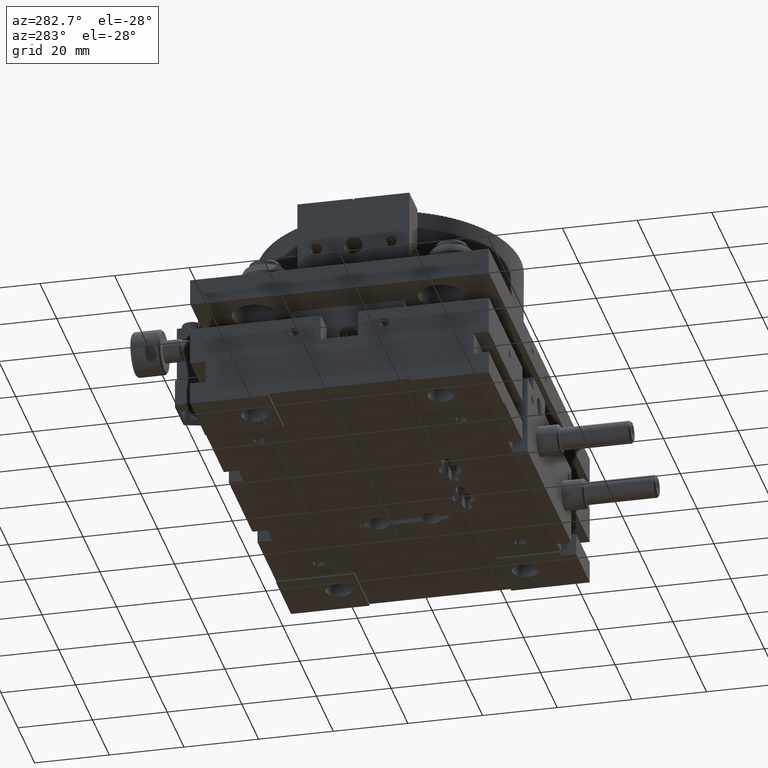
[diagram: clean part render]
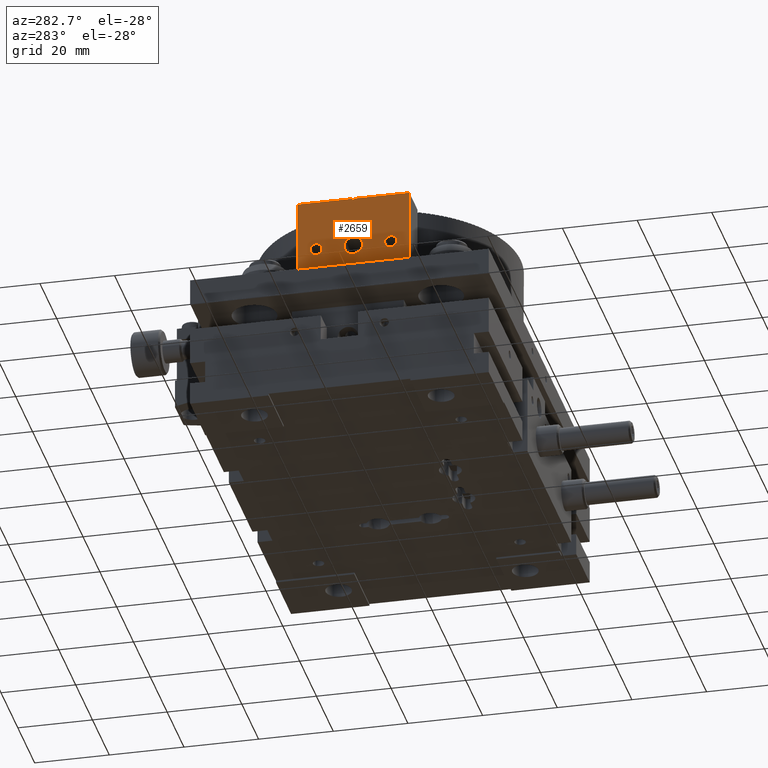
[diagram: same view with one face highlighted and labeled with its STEP entity id]
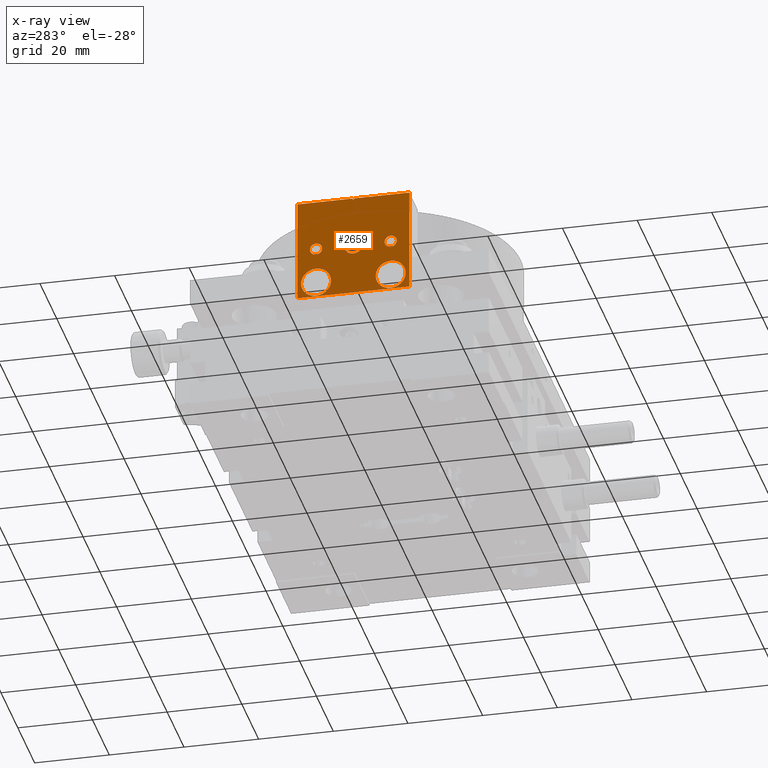
[diagram: x-ray of the same camera — body ghosted, the highlighted face saturated]
A machine part, auxiliary view. The second image highlights one B-rep face of the part: STEP entity #2659.
The next image is the same camera in x-ray: the body ghosted, the highlighted face saturated — about 0% of this face is hidden behind the body in this view.
In plain terms, the highlighted face is a freeform B-spline surface patch.
Its self-contained STEP definition (entity closure, byte-faithful):
#2659=ADVANCED_FACE('',(#5856,#3560,#3561,#3562,#3563,#3564),#103424,.T.);
#3560=FACE_BOUND('',#8921,.T.);
#3561=FACE_BOUND('',#8922,.T.);
#3562=FACE_BOUND('',#8923,.T.);
#3563=FACE_BOUND('',#8924,.T.);
#3564=FACE_BOUND('',#8925,.T.);
#5856=FACE_OUTER_BOUND('',#8920,.T.);
#8920=EDGE_LOOP('',(#21815,#21816,#21817,#21818,#21819,#21820,#21821,#21822));
#8921=EDGE_LOOP('',(#21823,#21824,#21825));
#8922=EDGE_LOOP('',(#21826,#21827));
#8923=EDGE_LOOP('',(#21828,#21829));
#8924=EDGE_LOOP('',(#21830,#21831));
#8925=EDGE_LOOP('',(#21832,#21833));
#21815=ORIENTED_EDGE('',*,*,#90311,.T.);
#21816=ORIENTED_EDGE('',*,*,#90312,.T.);
#21817=ORIENTED_EDGE('',*,*,#90227,.F.);
#21818=ORIENTED_EDGE('',*,*,#90313,.T.);
#21819=ORIENTED_EDGE('',*,*,#90314,.T.);
#21820=ORIENTED_EDGE('',*,*,#90309,.F.);
#21821=ORIENTED_EDGE('',*,*,#90307,.F.);
#21822=ORIENTED_EDGE('',*,*,#90315,.T.);
#21823=ORIENTED_EDGE('',*,*,#90285,.F.);
#21824=ORIENTED_EDGE('',*,*,#90284,.F.);
#21825=ORIENTED_EDGE('',*,*,#90290,.F.);
#21826=ORIENTED_EDGE('',*,*,#90277,.F.);
#21827=ORIENTED_EDGE('',*,*,#90282,.F.);
#21828=ORIENTED_EDGE('',*,*,#90270,.F.);
#21829=ORIENTED_EDGE('',*,*,#90275,.F.);
#21830=ORIENTED_EDGE('',*,*,#90264,.F.);
#21831=ORIENTED_EDGE('',*,*,#90268,.F.);
#21832=ORIENTED_EDGE('',*,*,#90256,.F.);
#21833=ORIENTED_EDGE('',*,*,#90260,.F.);
#41017=B_SPLINE_CURVE_WITH_KNOTS('',1,(#172285,#172286),.UNSPECIFIED.,.F.,
 .F.,(2,2),(-30.0000000000001,0.),.UNSPECIFIED.);
#41018=B_SPLINE_CURVE_WITH_KNOTS('',1,(#172287,#172288),.UNSPECIFIED.,.F.,
 .F.,(2,2),(-30.0000000000001,0.),.UNSPECIFIED.);
#41102=B_SPLINE_CURVE_WITH_KNOTS('',1,(#172723,#172724),.UNSPECIFIED.,.F.,
 .F.,(2,2),(-12.5663706143592,0.),.UNSPECIFIED.);
#41109=B_SPLINE_CURVE_WITH_KNOTS('',1,(#172752,#172753),.UNSPECIFIED.,.F.,
 .F.,(2,2),(-12.5663706143592,0.),.UNSPECIFIED.);
#41122=B_SPLINE_CURVE_WITH_KNOTS('',1,(#172804,#172805),.UNSPECIFIED.,.F.,
 .F.,(2,2),(-12.5663706143592,0.),.UNSPECIFIED.);
#41129=B_SPLINE_CURVE_WITH_KNOTS('',1,(#172833,#172834),.UNSPECIFIED.,.F.,
 .F.,(2,2),(-12.5663706143592,0.),.UNSPECIFIED.);
#41132=B_SPLINE_CURVE_WITH_KNOTS('',1,(#172865,#172866),.UNSPECIFIED.,.F.,
 .F.,(2,2),(-5.09252169146906,0.),.UNSPECIFIED.);
#41143=B_SPLINE_CURVE_WITH_KNOTS('',1,(#172922,#172923),.UNSPECIFIED.,.F.,
 .F.,(2,2),(-5.09252169146906,0.),.UNSPECIFIED.);
#41146=B_SPLINE_CURVE_WITH_KNOTS('',1,(#172933,#172934),.UNSPECIFIED.,.F.,
 .F.,(2,2),(-5.09252169146906,0.),.UNSPECIFIED.);
#41157=B_SPLINE_CURVE_WITH_KNOTS('',1,(#172986,#172987),.UNSPECIFIED.,.F.,
 .F.,(2,2),(-5.09252169146906,0.),.UNSPECIFIED.);
#41160=B_SPLINE_CURVE_WITH_KNOTS('',1,(#172995,#172996),.UNSPECIFIED.,.F.,
 .F.,(2,2),(-3.86180276942525,0.),.UNSPECIFIED.);
#41161=B_SPLINE_CURVE_WITH_KNOTS('',1,(#173002,#173003),.UNSPECIFIED.,.F.,
 .F.,(2,2),(-7.72360553885051,0.),.UNSPECIFIED.);
#41172=B_SPLINE_CURVE_WITH_KNOTS('',1,(#173051,#173052),.UNSPECIFIED.,.F.,
 .F.,(2,2),(-7.72360553885051,-3.86180276942525),.UNSPECIFIED.);
#41220=B_SPLINE_CURVE_WITH_KNOTS('',1,(#173216,#173217),.UNSPECIFIED.,.F.,
 .F.,(2,2),(0.,0.399999999999999),.UNSPECIFIED.);
#41221=B_SPLINE_CURVE_WITH_KNOTS('',1,(#173218,#173219),.UNSPECIFIED.,.F.,
 .F.,(2,2),(0.,0.399999999999999),.UNSPECIFIED.);
#41226=B_SPLINE_CURVE_WITH_KNOTS('',1,(#173231,#173232),.UNSPECIFIED.,.F.,
 .F.,(2,2),(0.,0.299999999999997),.UNSPECIFIED.);
#41227=B_SPLINE_CURVE_WITH_KNOTS('',1,(#173233,#173234),.UNSPECIFIED.,.F.,
 .F.,(2,2),(0.,0.299999999999997),.UNSPECIFIED.);
#41230=B_SPLINE_CURVE_WITH_KNOTS('',1,(#173239,#173240),.UNSPECIFIED.,.F.,
 .F.,(2,2),(0.,14.8000000000001),.UNSPECIFIED.);
#41231=B_SPLINE_CURVE_WITH_KNOTS('',1,(#173241,#173242),.UNSPECIFIED.,.F.,
 .F.,(2,2),(0.,14.8000000000001),.UNSPECIFIED.);
#41232=B_SPLINE_CURVE_WITH_KNOTS('',1,(#173243,#173244),.UNSPECIFIED.,.F.,
 .F.,(2,2),(-27.8,0.),.UNSPECIFIED.);
#41233=B_SPLINE_CURVE_WITH_KNOTS('',1,(#173245,#173246),.UNSPECIFIED.,.F.,
 .F.,(2,2),(-27.8,0.),.UNSPECIFIED.);
#41234=B_SPLINE_CURVE_WITH_KNOTS('',1,(#173247,#173248),.UNSPECIFIED.,.F.,
 .F.,(2,2),(-30.0000000000001,0.),.UNSPECIFIED.);
#41235=B_SPLINE_CURVE_WITH_KNOTS('',1,(#173249,#173250),.UNSPECIFIED.,.F.,
 .F.,(2,2),(0.,27.8),.UNSPECIFIED.);
#41236=B_SPLINE_CURVE_WITH_KNOTS('',1,(#173251,#173252),.UNSPECIFIED.,.F.,
 .F.,(2,2),(0.,27.8),.UNSPECIFIED.);
#41237=B_SPLINE_CURVE_WITH_KNOTS('',1,(#173253,#173254),.UNSPECIFIED.,.F.,
 .F.,(2,2),(0.,14.8),.UNSPECIFIED.);
#41238=B_SPLINE_CURVE_WITH_KNOTS('',1,(#173255,#173256),.UNSPECIFIED.,.F.,
 .F.,(2,2),(0.,14.8),.UNSPECIFIED.);
#41239=B_SPLINE_CURVE_WITH_KNOTS('',1,(#173257,#173258),.UNSPECIFIED.,.F.,
 .F.,(2,2),(0.,0.299999999999997),.UNSPECIFIED.);
#41240=B_SPLINE_CURVE_WITH_KNOTS('',1,(#173259,#173260),.UNSPECIFIED.,.F.,
 .F.,(2,2),(0.,0.399999999999999),.UNSPECIFIED.);
#41241=B_SPLINE_CURVE_WITH_KNOTS('',1,(#173261,#173262),.UNSPECIFIED.,.F.,
 .F.,(2,2),(0.,0.299999999999997),.UNSPECIFIED.);
#41242=B_SPLINE_CURVE_WITH_KNOTS('',1,(#173263,#173264),.UNSPECIFIED.,.F.,
 .F.,(2,2),(0.,0.299999999999997),.UNSPECIFIED.);
#41245=B_SPLINE_CURVE_WITH_KNOTS('',1,(#173320,#173321),.UNSPECIFIED.,.F.,
 .F.,(2,2),(0.,27.8),.UNSPECIFIED.);
#41252=B_SPLINE_CURVE_WITH_KNOTS('',1,(#173334,#173335),.UNSPECIFIED.,.F.,
 .F.,(2,2),(-27.8,0.),.UNSPECIFIED.);
#41253=B_SPLINE_CURVE_WITH_KNOTS('',1,(#173336,#173337),.UNSPECIFIED.,.F.,
 .F.,(2,2),(0.,0.299999999999997),.UNSPECIFIED.);
#41259=B_SPLINE_CURVE_WITH_KNOTS('',1,(#173356,#173357),.UNSPECIFIED.,.F.,
 .F.,(2,2),(0.,14.8),.UNSPECIFIED.);
#41262=B_SPLINE_CURVE_WITH_KNOTS('',1,(#173373,#173374),.UNSPECIFIED.,.F.,
 .F.,(2,2),(0.,14.8000000000001),.UNSPECIFIED.);
#56999=PCURVE('',#103404,#72592);
#57114=PCURVE('',#101254,#72707);
#57120=PCURVE('',#101255,#72713);
#57135=PCURVE('',#101258,#72728);
#57141=PCURVE('',#101259,#72734);
#57148=PCURVE('',#101260,#72741);
#57155=PCURVE('',#101261,#72748);
#57157=PCURVE('',#101262,#72750);
#57164=PCURVE('',#101263,#72757);
#57166=PCURVE('',#101264,#72759);
#57167=PCURVE('',#101264,#72760);
#57174=PCURVE('',#101265,#72767);
#57213=PCURVE('',#103422,#72806);
#57218=PCURVE('',#103423,#72811);
#57220=PCURVE('',#103424,#72813);
#57221=PCURVE('',#103424,#72814);
#57222=PCURVE('',#103424,#72815);
#57223=PCURVE('',#103424,#72816);
#57224=PCURVE('',#103424,#72817);
#57225=PCURVE('',#103424,#72818);
#57226=PCURVE('',#103424,#72819);
#57227=PCURVE('',#103424,#72820);
#57228=PCURVE('',#103424,#72821);
#57229=PCURVE('',#103424,#72822);
#57230=PCURVE('',#103424,#72823);
#57231=PCURVE('',#103424,#72824);
#57232=PCURVE('',#103424,#72825);
#57233=PCURVE('',#103424,#72826);
#57234=PCURVE('',#103424,#72827);
#57235=PCURVE('',#103424,#72828);
#57236=PCURVE('',#103424,#72829);
#57237=PCURVE('',#103424,#72830);
#57238=PCURVE('',#103424,#72831);
#57240=PCURVE('',#103425,#72833);
#57246=PCURVE('',#103426,#72839);
#57247=PCURVE('',#103427,#72840);
#57254=PCURVE('',#103428,#72847);
#57260=PCURVE('',#103429,#72853);
#72592=DEFINITIONAL_REPRESENTATION('',(#41018),#197026);
#72707=DEFINITIONAL_REPRESENTATION('',(#41102),#197026);
#72713=DEFINITIONAL_REPRESENTATION('',(#41109),#197026);
#72728=DEFINITIONAL_REPRESENTATION('',(#41122),#197026);
#72734=DEFINITIONAL_REPRESENTATION('',(#41129),#197026);
#72741=DEFINITIONAL_REPRESENTATION('',(#41132),#197026);
#72748=DEFINITIONAL_REPRESENTATION('',(#41143),#197026);
#72750=DEFINITIONAL_REPRESENTATION('',(#41146),#197026);
#72757=DEFINITIONAL_REPRESENTATION('',(#41157),#197026);
#72759=DEFINITIONAL_REPRESENTATION('',(#41160),#197026);
#72760=DEFINITIONAL_REPRESENTATION('',(#41161),#197026);
#72767=DEFINITIONAL_REPRESENTATION('',(#41172),#197026);
#72806=DEFINITIONAL_REPRESENTATION('',(#41221),#197026);
#72811=DEFINITIONAL_REPRESENTATION('',(#41227),#197026);
#72813=DEFINITIONAL_REPRESENTATION('',(#41231),#197026);
#72814=DEFINITIONAL_REPRESENTATION('',(#41233),#197026);
#72815=DEFINITIONAL_REPRESENTATION('',(#41234),#197026);
#72816=DEFINITIONAL_REPRESENTATION('',(#41236),#197026);
#72817=DEFINITIONAL_REPRESENTATION('',(#41238),#197026);
#72818=DEFINITIONAL_REPRESENTATION('',(#41239),#197026);
#72819=DEFINITIONAL_REPRESENTATION('',(#41240),#197026);
#72820=DEFINITIONAL_REPRESENTATION('',(#41242),#197026);
#72821=DEFINITIONAL_REPRESENTATION('',(#94347),#197026);
#72822=DEFINITIONAL_REPRESENTATION('',(#94348),#197026);
#72823=DEFINITIONAL_REPRESENTATION('',(#94349),#197026);
#72824=DEFINITIONAL_REPRESENTATION('',(#94350),#197026);
#72825=DEFINITIONAL_REPRESENTATION('',(#94351),#197026);
#72826=DEFINITIONAL_REPRESENTATION('',(#94352),#197026);
#72827=DEFINITIONAL_REPRESENTATION('',(#94353),#197026);
#72828=DEFINITIONAL_REPRESENTATION('',(#94354),#197026);
#72829=DEFINITIONAL_REPRESENTATION('',(#94355),#197026);
#72830=DEFINITIONAL_REPRESENTATION('',(#94356),#197026);
#72831=DEFINITIONAL_REPRESENTATION('',(#94357),#197026);
#72833=DEFINITIONAL_REPRESENTATION('',(#41245),#197026);
#72839=DEFINITIONAL_REPRESENTATION('',(#41252),#197026);
#72840=DEFINITIONAL_REPRESENTATION('',(#41253),#197026);
#72847=DEFINITIONAL_REPRESENTATION('',(#41259),#197026);
#72853=DEFINITIONAL_REPRESENTATION('',(#41262),#197026);
#82369=SURFACE_CURVE('',#41017,(#56999,#57222),.PCURVE_S1.);
#82398=SURFACE_CURVE('',#94314,(#57114,#57237),.PCURVE_S1.);
#82402=SURFACE_CURVE('',#94317,(#57120,#57238),.PCURVE_S1.);
#82406=SURFACE_CURVE('',#94323,(#57135,#57235),.PCURVE_S1.);
#82410=SURFACE_CURVE('',#94326,(#57141,#57236),.PCURVE_S1.);
#82412=SURFACE_CURVE('',#94332,(#57148,#57233),.PCURVE_S1.);
#82417=SURFACE_CURVE('',#94333,(#57155,#57234),.PCURVE_S1.);
#82419=SURFACE_CURVE('',#94334,(#57157,#57231),.PCURVE_S1.);
#82424=SURFACE_CURVE('',#94335,(#57164,#57232),.PCURVE_S1.);
#82426=SURFACE_CURVE('',#94336,(#57166,#57229),.PCURVE_S1.);
#82427=SURFACE_CURVE('',#94337,(#57167,#57228),.PCURVE_S1.);
#82432=SURFACE_CURVE('',#94338,(#57174,#57230),.PCURVE_S1.);
#82449=SURFACE_CURVE('',#41220,(#57213,#57226),.PCURVE_S1.);
#82451=SURFACE_CURVE('',#41226,(#57218,#57225),.PCURVE_S1.);
#82453=SURFACE_CURVE('',#41230,(#57220,#57260),.PCURVE_S1.);
#82454=SURFACE_CURVE('',#41232,(#57221,#57246),.PCURVE_S1.);
#82455=SURFACE_CURVE('',#41235,(#57223,#57240),.PCURVE_S1.);
#82456=SURFACE_CURVE('',#41237,(#57224,#57254),.PCURVE_S1.);
#82457=SURFACE_CURVE('',#41241,(#57227,#57247),.PCURVE_S1.);
#90227=EDGE_CURVE('',#99723,#99724,#82369,.T.);
#90256=EDGE_CURVE('',#99730,#99731,#82398,.T.);
#90260=EDGE_CURVE('',#99731,#99730,#82402,.T.);
#90264=EDGE_CURVE('',#99734,#99735,#82406,.T.);
#90268=EDGE_CURVE('',#99735,#99734,#82410,.T.);
#90270=EDGE_CURVE('',#99738,#99739,#82412,.T.);
#90275=EDGE_CURVE('',#99739,#99738,#82417,.T.);
#90277=EDGE_CURVE('',#99743,#99744,#82419,.T.);
#90282=EDGE_CURVE('',#99744,#99743,#82424,.T.);
#90284=EDGE_CURVE('',#99748,#99750,#82426,.T.);
#90285=EDGE_CURVE('',#99750,#99749,#82427,.T.);
#90290=EDGE_CURVE('',#99749,#99748,#82432,.T.);
#90307=EDGE_CURVE('',#99764,#99765,#82449,.T.);
#90309=EDGE_CURVE('',#99765,#99766,#82451,.T.);
#90311=EDGE_CURVE('',#99767,#99768,#82453,.T.);
#90312=EDGE_CURVE('',#99768,#99724,#82454,.T.);
#90313=EDGE_CURVE('',#99723,#99769,#82455,.T.);
#90314=EDGE_CURVE('',#99769,#99766,#82456,.T.);
#90315=EDGE_CURVE('',#99764,#99767,#82457,.T.);
#94314=(
BOUNDED_CURVE()
B_SPLINE_CURVE(2,(#172718,#172719,#172720,#172721,#172722),
 .UNSPECIFIED.,.F.,.F.)
B_SPLINE_CURVE_WITH_KNOTS((3,2,3),(-12.5663706143592,-6.28318530717959,
0.),.UNSPECIFIED.)
CURVE()
GEOMETRIC_REPRESENTATION_ITEM()
RATIONAL_B_SPLINE_CURVE((1.,0.707106781186548,1.,0.707106781186548,1.))
REPRESENTATION_ITEM('')
);
#94317=(
BOUNDED_CURVE()
B_SPLINE_CURVE(2,(#172747,#172748,#172749,#172750,#172751),
 .UNSPECIFIED.,.F.,.F.)
B_SPLINE_CURVE_WITH_KNOTS((3,2,3),(-12.5663706143592,-6.28318530717959,
0.),.UNSPECIFIED.)
CURVE()
GEOMETRIC_REPRESENTATION_ITEM()
RATIONAL_B_SPLINE_CURVE((1.,0.707106781186548,1.,0.707106781186548,1.))
REPRESENTATION_ITEM('')
);
#94323=(
BOUNDED_CURVE()
B_SPLINE_CURVE(2,(#172799,#172800,#172801,#172802,#172803),
 .UNSPECIFIED.,.F.,.F.)
B_SPLINE_CURVE_WITH_KNOTS((3,2,3),(-12.5663706143592,-6.28318530717959,
0.),.UNSPECIFIED.)
CURVE()
GEOMETRIC_REPRESENTATION_ITEM()
RATIONAL_B_SPLINE_CURVE((1.,0.707106781186548,1.,0.707106781186548,1.))
REPRESENTATION_ITEM('')
);
#94326=(
BOUNDED_CURVE()
B_SPLINE_CURVE(2,(#172828,#172829,#172830,#172831,#172832),
 .UNSPECIFIED.,.F.,.F.)
B_SPLINE_CURVE_WITH_KNOTS((3,2,3),(-12.5663706143592,-6.28318530717959,
0.),.UNSPECIFIED.)
CURVE()
GEOMETRIC_REPRESENTATION_ITEM()
RATIONAL_B_SPLINE_CURVE((1.,0.707106781186548,1.,0.707106781186548,1.))
REPRESENTATION_ITEM('')
);
#94332=(
BOUNDED_CURVE()
B_SPLINE_CURVE(2,(#172860,#172861,#172862,#172863,#172864),
 .UNSPECIFIED.,.F.,.F.)
B_SPLINE_CURVE_WITH_KNOTS((3,2,3),(-5.09252169146906,-2.54626084573453,
0.),.UNSPECIFIED.)
CURVE()
GEOMETRIC_REPRESENTATION_ITEM()
RATIONAL_B_SPLINE_CURVE((1.,0.707106781186554,1.,0.707106781186554,1.))
REPRESENTATION_ITEM('')
);
#94333=(
BOUNDED_CURVE()
B_SPLINE_CURVE(2,(#172917,#172918,#172919,#172920,#172921),
 .UNSPECIFIED.,.F.,.F.)
B_SPLINE_CURVE_WITH_KNOTS((3,2,3),(-5.09252169146906,-2.54626084573453,
0.),.UNSPECIFIED.)
CURVE()
GEOMETRIC_REPRESENTATION_ITEM()
RATIONAL_B_SPLINE_CURVE((1.,0.707106781186544,1.,0.707106781186544,1.))
REPRESENTATION_ITEM('')
);
#94334=(
BOUNDED_CURVE()
B_SPLINE_CURVE(2,(#172928,#172929,#172930,#172931,#172932),
 .UNSPECIFIED.,.F.,.F.)
B_SPLINE_CURVE_WITH_KNOTS((3,2,3),(-5.09252169146906,-2.54626084573453,
0.),.UNSPECIFIED.)
CURVE()
GEOMETRIC_REPRESENTATION_ITEM()
RATIONAL_B_SPLINE_CURVE((1.,0.707106781186548,1.,0.707106781186548,1.))
REPRESENTATION_ITEM('')
);
#94335=(
BOUNDED_CURVE()
B_SPLINE_CURVE(2,(#172981,#172982,#172983,#172984,#172985),
 .UNSPECIFIED.,.F.,.F.)
B_SPLINE_CURVE_WITH_KNOTS((3,2,3),(-5.09252169146906,-2.54626084573453,
0.),.UNSPECIFIED.)
CURVE()
GEOMETRIC_REPRESENTATION_ITEM()
RATIONAL_B_SPLINE_CURVE((1.,0.707106781186548,1.,0.707106781186548,1.))
REPRESENTATION_ITEM('')
);
#94336=(
BOUNDED_CURVE()
B_SPLINE_CURVE(2,(#172992,#172993,#172994),.UNSPECIFIED.,.F.,.F.)
B_SPLINE_CURVE_WITH_KNOTS((3,3),(-3.86180276942525,0.),.UNSPECIFIED.)
CURVE()
GEOMETRIC_REPRESENTATION_ITEM()
RATIONAL_B_SPLINE_CURVE((1.,0.707106781186554,1.))
REPRESENTATION_ITEM('')
);
#94337=(
BOUNDED_CURVE()
B_SPLINE_CURVE(2,(#172997,#172998,#172999,#173000,#173001),
 .UNSPECIFIED.,.F.,.F.)
B_SPLINE_CURVE_WITH_KNOTS((3,2,3),(-7.72360553885051,-3.86180276942525,
0.),.UNSPECIFIED.)
CURVE()
GEOMETRIC_REPRESENTATION_ITEM()
RATIONAL_B_SPLINE_CURVE((1.,0.707106781186542,1.,0.707106781186542,1.))
REPRESENTATION_ITEM('')
);
#94338=(
BOUNDED_CURVE()
B_SPLINE_CURVE(2,(#173048,#173049,#173050),.UNSPECIFIED.,.F.,.F.)
B_SPLINE_CURVE_WITH_KNOTS((3,3),(-7.72360553885051,-3.86180276942525),
 .UNSPECIFIED.)
CURVE()
GEOMETRIC_REPRESENTATION_ITEM()
RATIONAL_B_SPLINE_CURVE((1.,0.707106781186549,1.))
REPRESENTATION_ITEM('')
);
#94347=(
BOUNDED_CURVE()
B_SPLINE_CURVE(2,(#173265,#173266,#173267,#173268,#173269),
 .UNSPECIFIED.,.F.,.F.)
B_SPLINE_CURVE_WITH_KNOTS((3,2,3),(-7.72360553885051,-3.86180276942525,
0.),.UNSPECIFIED.)
CURVE()
GEOMETRIC_REPRESENTATION_ITEM()
RATIONAL_B_SPLINE_CURVE((1.,0.707106781186548,1.,0.707106781186548,1.))
REPRESENTATION_ITEM('')
);
#94348=(
BOUNDED_CURVE()
B_SPLINE_CURVE(2,(#173270,#173271,#173272),.UNSPECIFIED.,.F.,.F.)
B_SPLINE_CURVE_WITH_KNOTS((3,3),(-3.86180276942525,0.),.UNSPECIFIED.)
CURVE()
GEOMETRIC_REPRESENTATION_ITEM()
RATIONAL_B_SPLINE_CURVE((1.,0.707106781186551,1.))
REPRESENTATION_ITEM('')
);
#94349=(
BOUNDED_CURVE()
B_SPLINE_CURVE(2,(#173273,#173274,#173275),.UNSPECIFIED.,.F.,.F.)
B_SPLINE_CURVE_WITH_KNOTS((3,3),(-7.72360553885051,-3.86180276942525),
 .UNSPECIFIED.)
CURVE()
GEOMETRIC_REPRESENTATION_ITEM()
RATIONAL_B_SPLINE_CURVE((1.,0.707106781186544,1.))
REPRESENTATION_ITEM('')
);
#94350=(
BOUNDED_CURVE()
B_SPLINE_CURVE(2,(#173276,#173277,#173278,#173279,#173280),
 .UNSPECIFIED.,.F.,.F.)
B_SPLINE_CURVE_WITH_KNOTS((3,2,3),(-5.09252169146906,-2.54626084573453,
0.),.UNSPECIFIED.)
CURVE()
GEOMETRIC_REPRESENTATION_ITEM()
RATIONAL_B_SPLINE_CURVE((1.,0.707106781186548,1.,0.707106781186548,1.))
REPRESENTATION_ITEM('')
);
#94351=(
BOUNDED_CURVE()
B_SPLINE_CURVE(2,(#173281,#173282,#173283,#173284,#173285),
 .UNSPECIFIED.,.F.,.F.)
B_SPLINE_CURVE_WITH_KNOTS((3,2,3),(-5.09252169146906,-2.54626084573453,
0.),.UNSPECIFIED.)
CURVE()
GEOMETRIC_REPRESENTATION_ITEM()
RATIONAL_B_SPLINE_CURVE((1.,0.707106781186548,1.,0.707106781186548,1.))
REPRESENTATION_ITEM('')
);
#94352=(
BOUNDED_CURVE()
B_SPLINE_CURVE(2,(#173286,#173287,#173288,#173289,#173290),
 .UNSPECIFIED.,.F.,.F.)
B_SPLINE_CURVE_WITH_KNOTS((3,2,3),(-5.09252169146906,-2.54626084573453,
0.),.UNSPECIFIED.)
CURVE()
GEOMETRIC_REPRESENTATION_ITEM()
RATIONAL_B_SPLINE_CURVE((1.,0.707106781186548,1.,0.707106781186548,1.))
REPRESENTATION_ITEM('')
);
#94353=(
BOUNDED_CURVE()
B_SPLINE_CURVE(2,(#173291,#173292,#173293,#173294,#173295),
 .UNSPECIFIED.,.F.,.F.)
B_SPLINE_CURVE_WITH_KNOTS((3,2,3),(-5.09252169146906,-2.54626084573453,
0.),.UNSPECIFIED.)
CURVE()
GEOMETRIC_REPRESENTATION_ITEM()
RATIONAL_B_SPLINE_CURVE((1.,0.707106781186548,1.,0.707106781186548,1.))
REPRESENTATION_ITEM('')
);
#94354=(
BOUNDED_CURVE()
B_SPLINE_CURVE(2,(#173296,#173297,#173298,#173299,#173300),
 .UNSPECIFIED.,.F.,.F.)
B_SPLINE_CURVE_WITH_KNOTS((3,2,3),(-12.5663706143592,-6.28318530717959,
0.),.UNSPECIFIED.)
CURVE()
GEOMETRIC_REPRESENTATION_ITEM()
RATIONAL_B_SPLINE_CURVE((1.,0.707106781186548,1.,0.707106781186548,1.))
REPRESENTATION_ITEM('')
);
#94355=(
BOUNDED_CURVE()
B_SPLINE_CURVE(2,(#173301,#173302,#173303,#173304,#173305),
 .UNSPECIFIED.,.F.,.F.)
B_SPLINE_CURVE_WITH_KNOTS((3,2,3),(-12.5663706143592,-6.28318530717959,
0.),.UNSPECIFIED.)
CURVE()
GEOMETRIC_REPRESENTATION_ITEM()
RATIONAL_B_SPLINE_CURVE((1.,0.707106781186548,1.,0.707106781186548,1.))
REPRESENTATION_ITEM('')
);
#94356=(
BOUNDED_CURVE()
B_SPLINE_CURVE(2,(#173306,#173307,#173308,#173309,#173310),
 .UNSPECIFIED.,.F.,.F.)
B_SPLINE_CURVE_WITH_KNOTS((3,2,3),(-12.5663706143592,-6.28318530717959,
0.),.UNSPECIFIED.)
CURVE()
GEOMETRIC_REPRESENTATION_ITEM()
RATIONAL_B_SPLINE_CURVE((1.,0.707106781186548,1.,0.707106781186548,1.))
REPRESENTATION_ITEM('')
);
#94357=(
BOUNDED_CURVE()
B_SPLINE_CURVE(2,(#173311,#173312,#173313,#173314,#173315),
 .UNSPECIFIED.,.F.,.F.)
B_SPLINE_CURVE_WITH_KNOTS((3,2,3),(-12.5663706143592,-6.28318530717959,
0.),.UNSPECIFIED.)
CURVE()
GEOMETRIC_REPRESENTATION_ITEM()
RATIONAL_B_SPLINE_CURVE((1.,0.707106781186548,1.,0.707106781186548,1.))
REPRESENTATION_ITEM('')
);
#99723=VERTEX_POINT('',#165169);
#99724=VERTEX_POINT('',#165170);
#99730=VERTEX_POINT('',#165176);
#99731=VERTEX_POINT('',#165177);
#99734=VERTEX_POINT('',#165180);
#99735=VERTEX_POINT('',#165181);
#99738=VERTEX_POINT('',#165184);
#99739=VERTEX_POINT('',#165185);
#99743=VERTEX_POINT('',#165189);
#99744=VERTEX_POINT('',#165190);
#99748=VERTEX_POINT('',#165194);
#99749=VERTEX_POINT('',#165195);
#99750=VERTEX_POINT('',#165196);
#99764=VERTEX_POINT('',#165210);
#99765=VERTEX_POINT('',#165211);
#99766=VERTEX_POINT('',#165212);
#99767=VERTEX_POINT('',#165213);
#99768=VERTEX_POINT('',#165214);
#99769=VERTEX_POINT('',#165215);
#101254=(
BOUNDED_SURFACE()
B_SPLINE_SURFACE(1,2,((#163201,#163202,#163203,#163204,#163205,#163206,
#163207,#163208,#163209),(#163210,#163211,#163212,#163213,#163214,#163215,
#163216,#163217,#163218)),.UNSPECIFIED.,.F.,.F.,.F.)
B_SPLINE_SURFACE_WITH_KNOTS((2,2),(3,2,2,2,3),(0.,5.64000000000002),(0.,
1.5707963267949,3.14159265358979,4.71238898038469,6.28318530717959),
 .UNSPECIFIED.)
GEOMETRIC_REPRESENTATION_ITEM()
RATIONAL_B_SPLINE_SURFACE(((1.,0.707106781186548,1.,0.707106781186548,1.,
0.707106781186548,1.,0.707106781186548,1.),(1.,0.707106781186548,1.,0.707106781186548,
1.,0.707106781186548,1.,0.707106781186548,1.)))
REPRESENTATION_ITEM('')
SURFACE()
);
#101255=(
BOUNDED_SURFACE()
B_SPLINE_SURFACE(1,2,((#163219,#163220,#163221,#163222,#163223,#163224,
#163225,#163226,#163227),(#163228,#163229,#163230,#163231,#163232,#163233,
#163234,#163235,#163236)),.UNSPECIFIED.,.F.,.F.,.F.)
B_SPLINE_SURFACE_WITH_KNOTS((2,2),(3,2,2,2,3),(0.,5.64000000000002),(0.,
1.5707963267949,3.14159265358979,4.71238898038469,6.28318530717959),
 .UNSPECIFIED.)
GEOMETRIC_REPRESENTATION_ITEM()
RATIONAL_B_SPLINE_SURFACE(((1.,0.707106781186548,1.,0.707106781186548,1.,
0.707106781186548,1.,0.707106781186548,1.),(1.,0.707106781186548,1.,0.707106781186548,
1.,0.707106781186548,1.,0.707106781186548,1.)))
REPRESENTATION_ITEM('')
SURFACE()
);
#101258=(
BOUNDED_SURFACE()
B_SPLINE_SURFACE(1,2,((#163277,#163278,#163279,#163280,#163281,#163282,
#163283,#163284,#163285),(#163286,#163287,#163288,#163289,#163290,#163291,
#163292,#163293,#163294)),.UNSPECIFIED.,.F.,.F.,.F.)
B_SPLINE_SURFACE_WITH_KNOTS((2,2),(3,2,2,2,3),(0.,5.64000000000002),(0.,
1.5707963267949,3.14159265358979,4.71238898038469,6.28318530717959),
 .UNSPECIFIED.)
GEOMETRIC_REPRESENTATION_ITEM()
RATIONAL_B_SPLINE_SURFACE(((1.,0.707106781186548,1.,0.707106781186548,1.,
0.707106781186548,1.,0.707106781186548,1.),(1.,0.707106781186548,1.,0.707106781186548,
1.,0.707106781186548,1.,0.707106781186548,1.)))
REPRESENTATION_ITEM('')
SURFACE()
);
#101259=(
BOUNDED_SURFACE()
B_SPLINE_SURFACE(1,2,((#163295,#163296,#163297,#163298,#163299,#163300,
#163301,#163302,#163303),(#163304,#163305,#163306,#163307,#163308,#163309,
#163310,#163311,#163312)),.UNSPECIFIED.,.F.,.F.,.F.)
B_SPLINE_SURFACE_WITH_KNOTS((2,2),(3,2,2,2,3),(0.,5.64000000000002),(0.,
1.5707963267949,3.14159265358979,4.71238898038469,6.28318530717959),
 .UNSPECIFIED.)
GEOMETRIC_REPRESENTATION_ITEM()
RATIONAL_B_SPLINE_SURFACE(((1.,0.707106781186548,1.,0.707106781186548,1.,
0.707106781186548,1.,0.707106781186548,1.),(1.,0.707106781186548,1.,0.707106781186548,
1.,0.707106781186548,1.,0.707106781186548,1.)))
REPRESENTATION_ITEM('')
SURFACE()
);
#101260=(
BOUNDED_SURFACE()
B_SPLINE_SURFACE(1,2,((#163317,#163318,#163319,#163320,#163321,#163322,
#163323,#163324,#163325),(#163326,#163327,#163328,#163329,#163330,#163331,
#163332,#163333,#163334)),.UNSPECIFIED.,.F.,.F.,.F.)
B_SPLINE_SURFACE_WITH_KNOTS((2,2),(3,2,2,2,3),(0.,10.9192654573645),(0.,
1.5707963267949,3.14159265358979,4.71238898038469,6.28318530717959),
 .UNSPECIFIED.)
GEOMETRIC_REPRESENTATION_ITEM()
RATIONAL_B_SPLINE_SURFACE(((1.,0.707106781186548,1.,0.707106781186548,1.,
0.707106781186548,1.,0.707106781186548,1.),(1.,0.707106781186548,1.,0.707106781186548,
1.,0.707106781186548,1.,0.707106781186548,1.)))
REPRESENTATION_ITEM('')
SURFACE()
);
#101261=(
BOUNDED_SURFACE()
B_SPLINE_SURFACE(1,2,((#163335,#163336,#163337,#163338,#163339,#163340,
#163341,#163342,#163343),(#163344,#163345,#163346,#163347,#163348,#163349,
#163350,#163351,#163352)),.UNSPECIFIED.,.F.,.F.,.F.)
B_SPLINE_SURFACE_WITH_KNOTS((2,2),(3,2,2,2,3),(0.,10.9192654573645),(0.,
1.5707963267949,3.14159265358979,4.71238898038469,6.28318530717959),
 .UNSPECIFIED.)
GEOMETRIC_REPRESENTATION_ITEM()
RATIONAL_B_SPLINE_SURFACE(((1.,0.707106781186548,1.,0.707106781186548,1.,
0.707106781186548,1.,0.707106781186548,1.),(1.,0.707106781186548,1.,0.707106781186548,
1.,0.707106781186548,1.,0.707106781186548,1.)))
REPRESENTATION_ITEM('')
SURFACE()
);
#101262=(
BOUNDED_SURFACE()
B_SPLINE_SURFACE(1,2,((#163353,#163354,#163355,#163356,#163357,#163358,
#163359,#163360,#163361),(#163362,#163363,#163364,#163365,#163366,#163367,
#163368,#163369,#163370)),.UNSPECIFIED.,.F.,.F.,.F.)
B_SPLINE_SURFACE_WITH_KNOTS((2,2),(3,2,2,2,3),(0.,10.9192654573645),(0.,
1.5707963267949,3.14159265358979,4.71238898038469,6.28318530717959),
 .UNSPECIFIED.)
GEOMETRIC_REPRESENTATION_ITEM()
RATIONAL_B_SPLINE_SURFACE(((1.,0.707106781186548,1.,0.707106781186548,1.,
0.707106781186548,1.,0.707106781186548,1.),(1.,0.707106781186548,1.,0.707106781186548,
1.,0.707106781186548,1.,0.707106781186548,1.)))
REPRESENTATION_ITEM('')
SURFACE()
);
#101263=(
BOUNDED_SURFACE()
B_SPLINE_SURFACE(1,2,((#163371,#163372,#163373,#163374,#163375,#163376,
#163377,#163378,#163379),(#163380,#163381,#163382,#163383,#163384,#163385,
#163386,#163387,#163388)),.UNSPECIFIED.,.F.,.F.,.F.)
B_SPLINE_SURFACE_WITH_KNOTS((2,2),(3,2,2,2,3),(0.,10.9192654573645),(0.,
1.5707963267949,3.14159265358979,4.71238898038469,6.28318530717959),
 .UNSPECIFIED.)
GEOMETRIC_REPRESENTATION_ITEM()
RATIONAL_B_SPLINE_SURFACE(((1.,0.707106781186548,1.,0.707106781186548,1.,
0.707106781186548,1.,0.707106781186548,1.),(1.,0.707106781186548,1.,0.707106781186548,
1.,0.707106781186548,1.,0.707106781186548,1.)))
REPRESENTATION_ITEM('')
SURFACE()
);
#101264=(
BOUNDED_SURFACE()
B_SPLINE_SURFACE(1,2,((#163389,#163390,#163391,#163392,#163393,#163394,
#163395,#163396,#163397),(#163398,#163399,#163400,#163401,#163402,#163403,
#163404,#163405,#163406)),.UNSPECIFIED.,.F.,.F.,.F.)
B_SPLINE_SURFACE_WITH_KNOTS((2,2),(3,2,2,2,3),(0.,8.7394700265546),(0.,
1.5707963267949,3.14159265358979,4.71238898038469,6.28318530717959),
 .UNSPECIFIED.)
GEOMETRIC_REPRESENTATION_ITEM()
RATIONAL_B_SPLINE_SURFACE(((1.,0.707106781186548,1.,0.707106781186548,1.,
0.707106781186548,1.,0.707106781186548,1.),(1.,0.707106781186548,1.,0.707106781186548,
1.,0.707106781186548,1.,0.707106781186548,1.)))
REPRESENTATION_ITEM('')
SURFACE()
);
#101265=(
BOUNDED_SURFACE()
B_SPLINE_SURFACE(1,2,((#163407,#163408,#163409,#163410,#163411,#163412,
#163413,#163414,#163415),(#163416,#163417,#163418,#163419,#163420,#163421,
#163422,#163423,#163424)),.UNSPECIFIED.,.F.,.F.,.F.)
B_SPLINE_SURFACE_WITH_KNOTS((2,2),(3,2,2,2,3),(0.,8.7394700265546),(0.,
1.5707963267949,3.14159265358979,4.71238898038469,6.28318530717959),
 .UNSPECIFIED.)
GEOMETRIC_REPRESENTATION_ITEM()
RATIONAL_B_SPLINE_SURFACE(((1.,0.707106781186548,1.,0.707106781186548,1.,
0.707106781186548,1.,0.707106781186548,1.),(1.,0.707106781186548,1.,0.707106781186548,
1.,0.707106781186548,1.,0.707106781186548,1.)))
REPRESENTATION_ITEM('')
SURFACE()
);
#103404=B_SPLINE_SURFACE_WITH_KNOTS('',1,1,((#163101,#163102),(#163103,
#163104)),.UNSPECIFIED.,.F.,.F.,.F.,(2,2),(2,2),(-69.0700000000002,44.57),
(-53.9699633736047,52.4695971096554),.UNSPECIFIED.);
#103422=B_SPLINE_SURFACE_WITH_KNOTS('',1,1,((#163569,#163570),(#163571,
#163572)),.UNSPECIFIED.,.F.,.F.,.F.,(2,2),(2,2),(-4.94429656165827,4.89637950004431),
(-0.960000000000921,0.960000000000089),.UNSPECIFIED.);
#103423=B_SPLINE_SURFACE_WITH_KNOTS('',1,1,((#163573,#163574),(#163575,
#163576)),.UNSPECIFIED.,.F.,.F.,.F.,(2,2),(2,2),(-8.92061972322731,0.920056338475212),
(-0.350000000000007,1.44999999999999),.UNSPECIFIED.);
#103424=B_SPLINE_SURFACE_WITH_KNOTS('',1,1,((#163577,#163578),(#163579,
#163580)),.UNSPECIFIED.,.F.,.F.,.F.,(2,2),(2,2),(-23.1,10.5),(-33.1200000000001,
3.12),.UNSPECIFIED.);
#103425=B_SPLINE_SURFACE_WITH_KNOTS('',1,1,((#163581,#163582),(#163583,
#163584)),.UNSPECIFIED.,.F.,.F.,.F.,(2,2),(2,2),(-10.5,23.1),(-0.344963373605047,
11.2945971096553),.UNSPECIFIED.);
#103426=B_SPLINE_SURFACE_WITH_KNOTS('',1,1,((#163585,#163586),(#163587,
#163588)),.UNSPECIFIED.,.F.,.F.,.F.,(2,2),(2,2),(-23.1,10.5),(-10.5695971096553,
1.06996337360504),.UNSPECIFIED.);
#103427=B_SPLINE_SURFACE_WITH_KNOTS('',1,1,((#163589,#163590),(#163591,
#163592)),.UNSPECIFIED.,.F.,.F.,.F.,(2,2),(2,2),(-1.35462403563051,8.48605202607201),
(-1.44999999999999,0.350000000000003),.UNSPECIFIED.);
#103428=B_SPLINE_SURFACE_WITH_KNOTS('',1,1,((#163593,#163594),(#163595,
#163596)),.UNSPECIFIED.,.F.,.F.,.F.,(2,2),(2,2),(-7.86779492588241,5.4171486559036),
(-9.36770337575231,8.63229662424769),.UNSPECIFIED.);
#103429=B_SPLINE_SURFACE_WITH_KNOTS('',1,1,((#163597,#163598),(#163599,
#163600)),.UNSPECIFIED.,.F.,.F.,.F.,(2,2),(2,2),(-7.86779492588242,5.4171486559036),
(-8.63229662424771,9.36770337575242),.UNSPECIFIED.);
#163101=CARTESIAN_POINT('',(113.969963373604,8.01717743842259,36.3));
#163102=CARTESIAN_POINT('',(7.53040289034388,8.01717743842257,36.3));
#163103=CARTESIAN_POINT('',(113.969963373604,-105.622822561578,36.3));
#163104=CARTESIAN_POINT('',(7.53040289034389,-105.622822561578,36.3));
#163201=CARTESIAN_POINT('',(21.5703662639489,-71.0528225615777,36.4999999999999));
#163202=CARTESIAN_POINT('',(21.5703662639489,-75.0528225615777,36.4999999999999));
#163203=CARTESIAN_POINT('',(21.5703662639489,-75.0528225615777,40.4999999999999));
#163204=CARTESIAN_POINT('',(21.5703662639489,-75.0528225615777,44.4999999999999));
#163205=CARTESIAN_POINT('',(21.5703662639489,-71.0528225615777,44.4999999999999));
#163206=CARTESIAN_POINT('',(21.5703662639489,-67.0528225615777,44.4999999999999));
#163207=CARTESIAN_POINT('',(21.5703662639489,-67.0528225615777,40.4999999999999));
#163208=CARTESIAN_POINT('',(21.5703662639489,-67.0528225615777,36.4999999999999));
#163209=CARTESIAN_POINT('',(21.5703662639489,-71.0528225615777,36.4999999999999));
#163210=CARTESIAN_POINT('',(15.9303662639489,-71.0528225615777,36.4999999999999));
#163211=CARTESIAN_POINT('',(15.9303662639489,-75.0528225615777,36.4999999999999));
#163212=CARTESIAN_POINT('',(15.9303662639489,-75.0528225615777,40.4999999999999));
#163213=CARTESIAN_POINT('',(15.9303662639489,-75.0528225615777,44.4999999999999));
#163214=CARTESIAN_POINT('',(15.9303662639489,-71.0528225615777,44.4999999999999));
#163215=CARTESIAN_POINT('',(15.9303662639489,-67.0528225615777,44.4999999999999));
#163216=CARTESIAN_POINT('',(15.9303662639489,-67.0528225615777,40.4999999999999));
#163217=CARTESIAN_POINT('',(15.9303662639489,-67.0528225615777,36.4999999999999));
#163218=CARTESIAN_POINT('',(15.9303662639489,-71.0528225615777,36.4999999999999));
#163219=CARTESIAN_POINT('',(21.5703662639489,-71.0528225615777,36.4999999999999));
#163220=CARTESIAN_POINT('',(21.5703662639489,-75.0528225615777,36.4999999999999));
#163221=CARTESIAN_POINT('',(21.5703662639489,-75.0528225615777,40.4999999999999));
#163222=CARTESIAN_POINT('',(21.5703662639489,-75.0528225615777,44.4999999999999));
#163223=CARTESIAN_POINT('',(21.5703662639489,-71.0528225615777,44.4999999999999));
#163224=CARTESIAN_POINT('',(21.5703662639489,-67.0528225615777,44.4999999999999));
#163225=CARTESIAN_POINT('',(21.5703662639489,-67.0528225615777,40.4999999999999));
#163226=CARTESIAN_POINT('',(21.5703662639489,-67.0528225615777,36.4999999999999));
#163227=CARTESIAN_POINT('',(21.5703662639489,-71.0528225615777,36.4999999999999));
#163228=CARTESIAN_POINT('',(15.9303662639489,-71.0528225615777,36.4999999999999));
#163229=CARTESIAN_POINT('',(15.9303662639489,-75.0528225615777,36.4999999999999));
#163230=CARTESIAN_POINT('',(15.9303662639489,-75.0528225615777,40.4999999999999));
#163231=CARTESIAN_POINT('',(15.9303662639489,-75.0528225615777,44.4999999999999));
#163232=CARTESIAN_POINT('',(15.9303662639489,-71.0528225615777,44.4999999999999));
#163233=CARTESIAN_POINT('',(15.9303662639489,-67.0528225615777,44.4999999999999));
#163234=CARTESIAN_POINT('',(15.9303662639489,-67.0528225615777,40.4999999999999));
#163235=CARTESIAN_POINT('',(15.9303662639489,-67.0528225615777,36.4999999999999));
#163236=CARTESIAN_POINT('',(15.9303662639489,-71.0528225615777,36.4999999999999));
#163277=CARTESIAN_POINT('',(21.5703662639489,-51.0528225615776,36.4999999999999));
#163278=CARTESIAN_POINT('',(21.5703662639489,-55.0528225615776,36.4999999999999));
#163279=CARTESIAN_POINT('',(21.5703662639489,-55.0528225615776,40.4999999999999));
#163280=CARTESIAN_POINT('',(21.5703662639489,-55.0528225615776,44.4999999999999));
#163281=CARTESIAN_POINT('',(21.5703662639489,-51.0528225615776,44.4999999999999));
#163282=CARTESIAN_POINT('',(21.5703662639489,-47.0528225615776,44.4999999999999));
#163283=CARTESIAN_POINT('',(21.5703662639489,-47.0528225615776,40.4999999999999));
#163284=CARTESIAN_POINT('',(21.5703662639489,-47.0528225615776,36.4999999999999));
#163285=CARTESIAN_POINT('',(21.5703662639489,-51.0528225615776,36.4999999999999));
#163286=CARTESIAN_POINT('',(15.9303662639489,-51.0528225615776,36.4999999999999));
#163287=CARTESIAN_POINT('',(15.9303662639489,-55.0528225615776,36.4999999999999));
#163288=CARTESIAN_POINT('',(15.9303662639489,-55.0528225615776,40.4999999999999));
#163289=CARTESIAN_POINT('',(15.9303662639489,-55.0528225615776,44.4999999999999));
#163290=CARTESIAN_POINT('',(15.9303662639489,-51.0528225615776,44.4999999999999));
#163291=CARTESIAN_POINT('',(15.9303662639489,-47.0528225615776,44.4999999999999));
#163292=CARTESIAN_POINT('',(15.9303662639489,-47.0528225615776,40.4999999999999));
#163293=CARTESIAN_POINT('',(15.9303662639489,-47.0528225615776,36.4999999999999));
#163294=CARTESIAN_POINT('',(15.9303662639489,-51.0528225615776,36.4999999999999));
#163295=CARTESIAN_POINT('',(21.5703662639489,-51.0528225615776,36.4999999999999));
#163296=CARTESIAN_POINT('',(21.5703662639489,-55.0528225615776,36.4999999999999));
#163297=CARTESIAN_POINT('',(21.5703662639489,-55.0528225615776,40.4999999999999));
#163298=CARTESIAN_POINT('',(21.5703662639489,-55.0528225615776,44.4999999999999));
#163299=CARTESIAN_POINT('',(21.5703662639489,-51.0528225615776,44.4999999999999));
#163300=CARTESIAN_POINT('',(21.5703662639489,-47.0528225615776,44.4999999999999));
#163301=CARTESIAN_POINT('',(21.5703662639489,-47.0528225615776,40.4999999999999));
#163302=CARTESIAN_POINT('',(21.5703662639489,-47.0528225615776,36.4999999999999));
#163303=CARTESIAN_POINT('',(21.5703662639489,-51.0528225615776,36.4999999999999));
#163304=CARTESIAN_POINT('',(15.9303662639489,-51.0528225615776,36.4999999999999));
#163305=CARTESIAN_POINT('',(15.9303662639489,-55.0528225615776,36.4999999999999));
#163306=CARTESIAN_POINT('',(15.9303662639489,-55.0528225615776,40.4999999999999));
#163307=CARTESIAN_POINT('',(15.9303662639489,-55.0528225615776,44.4999999999999));
#163308=CARTESIAN_POINT('',(15.9303662639489,-51.0528225615776,44.4999999999999));
#163309=CARTESIAN_POINT('',(15.9303662639489,-47.0528225615776,44.4999999999999));
#163310=CARTESIAN_POINT('',(15.9303662639489,-47.0528225615776,40.4999999999999));
#163311=CARTESIAN_POINT('',(15.9303662639489,-47.0528225615776,36.4999999999999));
#163312=CARTESIAN_POINT('',(15.9303662639489,-51.0528225615776,36.4999999999999));
#163317=CARTESIAN_POINT('',(26.4096929331997,-71.0528225615777,48.679));
#163318=CARTESIAN_POINT('',(26.4096929331997,-72.6738225615777,48.679));
#163319=CARTESIAN_POINT('',(26.4096929331997,-72.6738225615777,50.3));
#163320=CARTESIAN_POINT('',(26.4096929331997,-72.6738225615777,51.921));
#163321=CARTESIAN_POINT('',(26.4096929331997,-71.0528225615777,51.921));
#163322=CARTESIAN_POINT('',(26.4096929331997,-69.4318225615777,51.921));
#163323=CARTESIAN_POINT('',(26.4096929331997,-69.4318225615777,50.3));
#163324=CARTESIAN_POINT('',(26.4096929331997,-69.4318225615777,48.679));
#163325=CARTESIAN_POINT('',(26.4096929331997,-71.0528225615777,48.679));
#163326=CARTESIAN_POINT('',(15.4904274758352,-71.0528225615777,48.679));
#163327=CARTESIAN_POINT('',(15.4904274758352,-72.6738225615777,48.679));
#163328=CARTESIAN_POINT('',(15.4904274758352,-72.6738225615777,50.3));
#163329=CARTESIAN_POINT('',(15.4904274758352,-72.6738225615777,51.921));
#163330=CARTESIAN_POINT('',(15.4904274758352,-71.0528225615777,51.921));
#163331=CARTESIAN_POINT('',(15.4904274758352,-69.4318225615777,51.921));
#163332=CARTESIAN_POINT('',(15.4904274758352,-69.4318225615777,50.3));
#163333=CARTESIAN_POINT('',(15.4904274758352,-69.4318225615777,48.679));
#163334=CARTESIAN_POINT('',(15.4904274758352,-71.0528225615777,48.679));
#163335=CARTESIAN_POINT('',(26.4096929331997,-71.0528225615777,48.679));
#163336=CARTESIAN_POINT('',(26.4096929331997,-72.6738225615777,48.679));
#163337=CARTESIAN_POINT('',(26.4096929331997,-72.6738225615777,50.3));
#163338=CARTESIAN_POINT('',(26.4096929331997,-72.6738225615777,51.921));
#163339=CARTESIAN_POINT('',(26.4096929331997,-71.0528225615777,51.921));
#163340=CARTESIAN_POINT('',(26.4096929331997,-69.4318225615777,51.921));
#163341=CARTESIAN_POINT('',(26.4096929331997,-69.4318225615777,50.3));
#163342=CARTESIAN_POINT('',(26.4096929331997,-69.4318225615777,48.679));
#163343=CARTESIAN_POINT('',(26.4096929331997,-71.0528225615777,48.679));
#163344=CARTESIAN_POINT('',(15.4904274758352,-71.0528225615777,48.679));
#163345=CARTESIAN_POINT('',(15.4904274758352,-72.6738225615777,48.679));
#163346=CARTESIAN_POINT('',(15.4904274758352,-72.6738225615777,50.3));
#163347=CARTESIAN_POINT('',(15.4904274758352,-72.6738225615777,51.921));
#163348=CARTESIAN_POINT('',(15.4904274758352,-71.0528225615777,51.921));
#163349=CARTESIAN_POINT('',(15.4904274758352,-69.4318225615777,51.921));
#163350=CARTESIAN_POINT('',(15.4904274758352,-69.4318225615777,50.3));
#163351=CARTESIAN_POINT('',(15.4904274758352,-69.4318225615777,48.679));
#163352=CARTESIAN_POINT('',(15.4904274758352,-71.0528225615777,48.679));
#163353=CARTESIAN_POINT('',(26.4096929331997,-51.0528225615776,48.679));
#163354=CARTESIAN_POINT('',(26.4096929331997,-52.6738225615776,48.679));
#163355=CARTESIAN_POINT('',(26.4096929331997,-52.6738225615776,50.3));
#163356=CARTESIAN_POINT('',(26.4096929331997,-52.6738225615776,51.921));
#163357=CARTESIAN_POINT('',(26.4096929331997,-51.0528225615776,51.921));
#163358=CARTESIAN_POINT('',(26.4096929331997,-49.4318225615776,51.921));
#163359=CARTESIAN_POINT('',(26.4096929331997,-49.4318225615776,50.3));
#163360=CARTESIAN_POINT('',(26.4096929331997,-49.4318225615776,48.679));
#163361=CARTESIAN_POINT('',(26.4096929331997,-51.0528225615776,48.679));
#163362=CARTESIAN_POINT('',(15.4904274758352,-51.0528225615776,48.679));
#163363=CARTESIAN_POINT('',(15.4904274758352,-52.6738225615776,48.679));
#163364=CARTESIAN_POINT('',(15.4904274758352,-52.6738225615776,50.3));
#163365=CARTESIAN_POINT('',(15.4904274758352,-52.6738225615776,51.921));
#163366=CARTESIAN_POINT('',(15.4904274758352,-51.0528225615776,51.921));
#163367=CARTESIAN_POINT('',(15.4904274758352,-49.4318225615776,51.921));
#163368=CARTESIAN_POINT('',(15.4904274758352,-49.4318225615776,50.3));
#163369=CARTESIAN_POINT('',(15.4904274758352,-49.4318225615776,48.679));
#163370=CARTESIAN_POINT('',(15.4904274758352,-51.0528225615776,48.679));
#163371=CARTESIAN_POINT('',(26.4096929331997,-51.0528225615776,48.679));
#163372=CARTESIAN_POINT('',(26.4096929331997,-52.6738225615776,48.679));
#163373=CARTESIAN_POINT('',(26.4096929331997,-52.6738225615776,50.3));
#163374=CARTESIAN_POINT('',(26.4096929331997,-52.6738225615776,51.921));
#163375=CARTESIAN_POINT('',(26.4096929331997,-51.0528225615776,51.921));
#163376=CARTESIAN_POINT('',(26.4096929331997,-49.4318225615776,51.921));
#163377=CARTESIAN_POINT('',(26.4096929331997,-49.4318225615776,50.3));
#163378=CARTESIAN_POINT('',(26.4096929331997,-49.4318225615776,48.679));
#163379=CARTESIAN_POINT('',(26.4096929331997,-51.0528225615776,48.679));
#163380=CARTESIAN_POINT('',(15.4904274758352,-51.0528225615776,48.679));
#163381=CARTESIAN_POINT('',(15.4904274758352,-52.6738225615776,48.679));
#163382=CARTESIAN_POINT('',(15.4904274758352,-52.6738225615776,50.3));
#163383=CARTESIAN_POINT('',(15.4904274758352,-52.6738225615776,51.921));
#163384=CARTESIAN_POINT('',(15.4904274758352,-51.0528225615776,51.921));
#163385=CARTESIAN_POINT('',(15.4904274758352,-49.4318225615776,51.921));
#163386=CARTESIAN_POINT('',(15.4904274758352,-49.4318225615776,50.3));
#163387=CARTESIAN_POINT('',(15.4904274758352,-49.4318225615776,48.679));
#163388=CARTESIAN_POINT('',(15.4904274758352,-51.0528225615776,48.679));
#163389=CARTESIAN_POINT('',(24.4115471216239,-61.0528225615776,47.8415));
#163390=CARTESIAN_POINT('',(24.4115471216239,-63.5113225615776,47.8415));
#163391=CARTESIAN_POINT('',(24.4115471216239,-63.5113225615776,50.3));
#163392=CARTESIAN_POINT('',(24.4115471216239,-63.5113225615776,52.7585));
#163393=CARTESIAN_POINT('',(24.4115471216239,-61.0528225615776,52.7585));
#163394=CARTESIAN_POINT('',(24.4115471216239,-58.5943225615776,52.7585));
#163395=CARTESIAN_POINT('',(24.4115471216239,-58.5943225615776,50.3));
#163396=CARTESIAN_POINT('',(24.4115471216239,-58.5943225615776,47.8415));
#163397=CARTESIAN_POINT('',(24.4115471216239,-61.0528225615776,47.8415));
#163398=CARTESIAN_POINT('',(15.6720770950693,-61.0528225615776,47.8415));
#163399=CARTESIAN_POINT('',(15.6720770950693,-63.5113225615776,47.8415));
#163400=CARTESIAN_POINT('',(15.6720770950693,-63.5113225615776,50.3));
#163401=CARTESIAN_POINT('',(15.6720770950693,-63.5113225615776,52.7585));
#163402=CARTESIAN_POINT('',(15.6720770950693,-61.0528225615776,52.7585));
#163403=CARTESIAN_POINT('',(15.6720770950693,-58.5943225615776,52.7585));
#163404=CARTESIAN_POINT('',(15.6720770950693,-58.5943225615776,50.3));
#163405=CARTESIAN_POINT('',(15.6720770950693,-58.5943225615776,47.8415));
#163406=CARTESIAN_POINT('',(15.6720770950693,-61.0528225615776,47.8415));
#163407=CARTESIAN_POINT('',(24.4115471216239,-61.0528225615776,47.8415));
#163408=CARTESIAN_POINT('',(24.4115471216239,-63.5113225615776,47.8415));
#163409=CARTESIAN_POINT('',(24.4115471216239,-63.5113225615776,50.3));
#163410=CARTESIAN_POINT('',(24.4115471216239,-63.5113225615776,52.7585));
#163411=CARTESIAN_POINT('',(24.4115471216239,-61.0528225615776,52.7585));
#163412=CARTESIAN_POINT('',(24.4115471216239,-58.5943225615776,52.7585));
#163413=CARTESIAN_POINT('',(24.4115471216239,-58.5943225615776,50.3));
#163414=CARTESIAN_POINT('',(24.4115471216239,-58.5943225615776,47.8415));
#163415=CARTESIAN_POINT('',(24.4115471216239,-61.0528225615776,47.8415));
#163416=CARTESIAN_POINT('',(15.6720770950693,-61.0528225615776,47.8415));
#163417=CARTESIAN_POINT('',(15.6720770950693,-63.5113225615776,47.8415));
#163418=CARTESIAN_POINT('',(15.6720770950693,-63.5113225615776,50.3));
#163419=CARTESIAN_POINT('',(15.6720770950693,-63.5113225615776,52.7585));
#163420=CARTESIAN_POINT('',(15.6720770950693,-61.0528225615776,52.7585));
#163421=CARTESIAN_POINT('',(15.6720770950693,-58.5943225615776,52.7585));
#163422=CARTESIAN_POINT('',(15.6720770950693,-58.5943225615776,50.3));
#163423=CARTESIAN_POINT('',(15.6720770950693,-58.5943225615776,47.8415));
#163424=CARTESIAN_POINT('',(15.6720770950693,-61.0528225615776,47.8415));
#163569=CARTESIAN_POINT('',(25.4209859871763,-60.0928225615768,63.7999999999999));
#163570=CARTESIAN_POINT('',(25.4209859871763,-62.0128225615778,63.7999999999999));
#163571=CARTESIAN_POINT('',(15.5803099254737,-60.0928225615768,63.7999999999999));
#163572=CARTESIAN_POINT('',(15.5803099254737,-62.0128225615778,63.7999999999999));
#163573=CARTESIAN_POINT('',(25.4209859871762,-61.2528225615777,63.0499999999999));
#163574=CARTESIAN_POINT('',(25.4209859871762,-61.2528225615777,64.8499999999999));
#163575=CARTESIAN_POINT('',(15.5803099254737,-61.2528225615777,63.0499999999999));
#163576=CARTESIAN_POINT('',(15.5803099254737,-61.2528225615777,64.8499999999999));
#163577=CARTESIAN_POINT('',(16.5003662639489,-42.9328225615776,66.9999999999999));
#163578=CARTESIAN_POINT('',(16.5003662639489,-79.1728225615777,66.9999999999999));
#163579=CARTESIAN_POINT('',(16.5003662639489,-42.9328225615776,33.3999999999999));
#163580=CARTESIAN_POINT('',(16.5003662639489,-79.1728225615777,33.3999999999999));
#163581=CARTESIAN_POINT('',(27.0699633736043,-76.0528225615777,33.3999999999999));
#163582=CARTESIAN_POINT('',(15.4304028903439,-76.0528225615777,33.3999999999999));
#163583=CARTESIAN_POINT('',(27.0699633736042,-76.0528225615777,66.9999999999999));
#163584=CARTESIAN_POINT('',(15.4304028903438,-76.0528225615777,66.9999999999999));
#163585=CARTESIAN_POINT('',(27.0699633736042,-46.0528225615776,66.9999999999999));
#163586=CARTESIAN_POINT('',(15.4304028903438,-46.0528225615776,66.9999999999999));
#163587=CARTESIAN_POINT('',(27.0699633736043,-46.0528225615776,33.3999999999999));
#163588=CARTESIAN_POINT('',(15.4304028903439,-46.0528225615776,33.3999999999999));
#163589=CARTESIAN_POINT('',(25.4209859871762,-60.8528225615777,64.8499999999999));
#163590=CARTESIAN_POINT('',(25.4209859871762,-60.8528225615777,63.0499999999999));
#163591=CARTESIAN_POINT('',(15.5803099254737,-60.8528225615777,64.8499999999999));
#163592=CARTESIAN_POINT('',(15.5803099254737,-60.8528225615777,63.0499999999999));
#163593=CARTESIAN_POINT('',(28.5782312139194,-59.6528225615777,64.0999999999999));
#163594=CARTESIAN_POINT('',(28.5782312139194,-77.6528225615777,64.0999999999999));
#163595=CARTESIAN_POINT('',(15.2932876321334,-59.6528225615777,64.0999999999999));
#163596=CARTESIAN_POINT('',(15.2932876321334,-77.6528225615777,64.0999999999999));
#163597=CARTESIAN_POINT('',(28.5782312139194,-44.4528225615776,64.0999999999999));
#163598=CARTESIAN_POINT('',(28.5782312139194,-62.4528225615777,64.0999999999999));
#163599=CARTESIAN_POINT('',(15.2932876321334,-44.4528225615776,64.0999999999999));
#163600=CARTESIAN_POINT('',(15.2932876321334,-62.4528225615777,64.0999999999999));
#165169=CARTESIAN_POINT('',(16.5003662639489,-76.0528225615777,36.2999999999999));
#165170=CARTESIAN_POINT('',(16.5003662639489,-46.0528225615776,36.2999999999999));
#165176=CARTESIAN_POINT('',(16.5003662639489,-71.0528225615777,36.4999999999999));
#165177=CARTESIAN_POINT('',(16.5003662639489,-71.0528225615777,44.4999999999999));
#165180=CARTESIAN_POINT('',(16.5003662639489,-51.0528225615776,36.4999999999999));
#165181=CARTESIAN_POINT('',(16.5003662639489,-51.0528225615776,44.4999999999999));
#165184=CARTESIAN_POINT('',(16.5003662639489,-71.0528225615777,48.6789999999999));
#165185=CARTESIAN_POINT('',(16.5003662639489,-71.0528225615777,51.921));
#165189=CARTESIAN_POINT('',(16.5003662639489,-51.0528225615776,48.6789999999999));
#165190=CARTESIAN_POINT('',(16.5003662639489,-51.0528225615776,51.921));
#165194=CARTESIAN_POINT('',(16.5003662639489,-61.0528225615776,47.8415));
#165195=CARTESIAN_POINT('',(16.5003662639489,-58.5943225615776,50.2999999999999));
#165196=CARTESIAN_POINT('',(16.5003662639489,-63.5113225615776,50.2999999999999));
#165210=CARTESIAN_POINT('',(16.5003662639489,-60.8528225615777,63.7999999999999));
#165211=CARTESIAN_POINT('',(16.5003662639489,-61.2528225615777,63.7999999999999));
#165212=CARTESIAN_POINT('',(16.5003662639489,-61.2528225615777,64.0999999999999));
#165213=CARTESIAN_POINT('',(16.5003662639489,-60.8528225615777,64.0999999999999));
#165214=CARTESIAN_POINT('',(16.5003662639489,-46.0528225615776,64.0999999999999));
#165215=CARTESIAN_POINT('',(16.5003662639489,-76.0528225615777,64.0999999999999));
#172285=CARTESIAN_POINT('',(16.5003662639489,-76.0528225615777,36.2999999999999));
#172286=CARTESIAN_POINT('',(16.5003662639489,-46.0528225615776,36.2999999999999));
#172287=CARTESIAN_POINT('',(15.0000000000001,43.4996337360504));
#172288=CARTESIAN_POINT('',(-15.,43.4996337360504));
#172718=CARTESIAN_POINT('',(16.5003662639489,-71.0528225615777,36.4999999999999));
#172719=CARTESIAN_POINT('',(16.5003662639489,-75.0528225615777,36.4999999999999));
#172720=CARTESIAN_POINT('',(16.5003662639489,-75.0528225615777,40.4999999999999));
#172721=CARTESIAN_POINT('',(16.5003662639489,-75.0528225615777,44.4999999999999));
#172722=CARTESIAN_POINT('',(16.5003662639489,-71.0528225615777,44.4999999999999));
#172723=CARTESIAN_POINT('',(5.07000000000001,0.));
#172724=CARTESIAN_POINT('',(5.07000000000002,3.14159265358979));
#172747=CARTESIAN_POINT('',(16.5003662639489,-71.0528225615777,44.4999999999999));
#172748=CARTESIAN_POINT('',(16.5003662639489,-67.0528225615777,44.4999999999999));
#172749=CARTESIAN_POINT('',(16.5003662639489,-67.0528225615777,40.4999999999999));
#172750=CARTESIAN_POINT('',(16.5003662639489,-67.0528225615777,36.4999999999999));
#172751=CARTESIAN_POINT('',(16.5003662639489,-71.0528225615777,36.4999999999999));
#172752=CARTESIAN_POINT('',(5.07000000000002,3.14159265358979));
#172753=CARTESIAN_POINT('',(5.07000000000001,6.28318530717959));
#172799=CARTESIAN_POINT('',(16.5003662639489,-51.0528225615776,36.4999999999999));
#172800=CARTESIAN_POINT('',(16.5003662639489,-55.0528225615776,36.4999999999999));
#172801=CARTESIAN_POINT('',(16.5003662639489,-55.0528225615776,40.4999999999999));
#172802=CARTESIAN_POINT('',(16.5003662639489,-55.0528225615776,44.4999999999999));
#172803=CARTESIAN_POINT('',(16.5003662639489,-51.0528225615776,44.4999999999999));
#172804=CARTESIAN_POINT('',(5.07000000000001,0.));
#172805=CARTESIAN_POINT('',(5.07000000000002,3.14159265358979));
#172828=CARTESIAN_POINT('',(16.5003662639489,-51.0528225615776,44.4999999999999));
#172829=CARTESIAN_POINT('',(16.5003662639489,-47.0528225615776,44.4999999999999));
#172830=CARTESIAN_POINT('',(16.5003662639489,-47.0528225615776,40.4999999999999));
#172831=CARTESIAN_POINT('',(16.5003662639489,-47.0528225615776,36.4999999999999));
#172832=CARTESIAN_POINT('',(16.5003662639489,-51.0528225615776,36.4999999999999));
#172833=CARTESIAN_POINT('',(5.07000000000002,3.14159265358979));
#172834=CARTESIAN_POINT('',(5.07000000000001,6.28318530717959));
#172860=CARTESIAN_POINT('',(16.5003662639489,-71.0528225615777,48.6789999999999));
#172861=CARTESIAN_POINT('',(16.5003662639489,-72.6738225615777,48.679));
#172862=CARTESIAN_POINT('',(16.5003662639489,-72.6738225615777,50.2999999999999));
#172863=CARTESIAN_POINT('',(16.5003662639489,-72.6738225615777,51.9209999999999));
#172864=CARTESIAN_POINT('',(16.5003662639489,-71.0528225615777,51.9209999999999));
#172865=CARTESIAN_POINT('',(9.90932666925081,0.));
#172866=CARTESIAN_POINT('',(9.90932666925081,3.14159265358979));
#172917=CARTESIAN_POINT('',(16.5003662639489,-71.0528225615777,51.921));
#172918=CARTESIAN_POINT('',(16.5003662639489,-69.4318225615777,51.921));
#172919=CARTESIAN_POINT('',(16.5003662639489,-69.4318225615777,50.3));
#172920=CARTESIAN_POINT('',(16.5003662639489,-69.4318225615777,48.6789999999999));
#172921=CARTESIAN_POINT('',(16.5003662639489,-71.0528225615777,48.679));
#172922=CARTESIAN_POINT('',(9.90932666925081,3.14159265358979));
#172923=CARTESIAN_POINT('',(9.90932666925081,6.28318530717959));
#172928=CARTESIAN_POINT('',(16.5003662639489,-51.0528225615776,48.6789999999999));
#172929=CARTESIAN_POINT('',(16.5003662639489,-52.6738225615776,48.6789999999999));
#172930=CARTESIAN_POINT('',(16.5003662639489,-52.6738225615776,50.2999999999999));
#172931=CARTESIAN_POINT('',(16.5003662639489,-52.6738225615776,51.9209999999999));
#172932=CARTESIAN_POINT('',(16.5003662639489,-51.0528225615776,51.9209999999999));
#172933=CARTESIAN_POINT('',(9.90932666925081,0.));
#172934=CARTESIAN_POINT('',(9.90932666925081,3.14159265358979));
#172981=CARTESIAN_POINT('',(16.5003662639489,-51.0528225615776,51.921));
#172982=CARTESIAN_POINT('',(16.5003662639489,-49.4318225615776,51.921));
#172983=CARTESIAN_POINT('',(16.5003662639489,-49.4318225615776,50.3));
#172984=CARTESIAN_POINT('',(16.5003662639489,-49.4318225615776,48.679));
#172985=CARTESIAN_POINT('',(16.5003662639489,-51.0528225615776,48.679));
#172986=CARTESIAN_POINT('',(9.90932666925081,3.14159265358979));
#172987=CARTESIAN_POINT('',(9.90932666925081,6.28318530717959));
#172992=CARTESIAN_POINT('',(16.5003662639489,-61.0528225615776,47.8415));
#172993=CARTESIAN_POINT('',(16.5003662639489,-63.5113225615776,47.8415));
#172994=CARTESIAN_POINT('',(16.5003662639489,-63.5113225615776,50.2999999999999));
#172995=CARTESIAN_POINT('',(7.91118085767505,0.));
#172996=CARTESIAN_POINT('',(7.91118085767505,1.5707963267949));
#172997=CARTESIAN_POINT('',(16.5003662639489,-63.5113225615776,50.2999999999999));
#172998=CARTESIAN_POINT('',(16.5003662639489,-63.5113225615777,52.7585));
#172999=CARTESIAN_POINT('',(16.5003662639489,-61.0528225615776,52.7585));
#173000=CARTESIAN_POINT('',(16.5003662639489,-58.5943225615776,52.7585));
#173001=CARTESIAN_POINT('',(16.5003662639489,-58.5943225615776,50.2999999999999));
#173002=CARTESIAN_POINT('',(7.91118085767505,1.5707963267949));
#173003=CARTESIAN_POINT('',(7.91118085767505,4.71238898038469));
#173048=CARTESIAN_POINT('',(16.5003662639489,-58.5943225615776,50.2999999999999));
#173049=CARTESIAN_POINT('',(16.5003662639489,-58.5943225615776,47.8415));
#173050=CARTESIAN_POINT('',(16.5003662639489,-61.0528225615776,47.8415));
#173051=CARTESIAN_POINT('',(7.91118085767505,4.71238898038469));
#173052=CARTESIAN_POINT('',(7.91118085767505,6.28318530717959));
#173216=CARTESIAN_POINT('',(16.5003662639489,-60.8528225615777,63.7999999999999));
#173217=CARTESIAN_POINT('',(16.5003662639489,-61.2528225615777,63.7999999999999));
#173218=CARTESIAN_POINT('',(3.9763231615691,-0.199999999999996));
#173219=CARTESIAN_POINT('',(3.9763231615691,0.200000000000002));
#173231=CARTESIAN_POINT('',(16.5003662639489,-61.2528225615777,63.7999999999999));
#173232=CARTESIAN_POINT('',(16.5003662639489,-61.2528225615777,64.0999999999999));
#173233=CARTESIAN_POINT('',(-2.314749285746E-16,0.399999999999999));
#173234=CARTESIAN_POINT('',(-4.0508112500555E-16,0.699999999999996));
#173239=CARTESIAN_POINT('',(16.5003662639489,-60.8528225615777,64.0999999999999));
#173240=CARTESIAN_POINT('',(16.5003662639489,-46.0528225615776,64.0999999999999));
#173241=CARTESIAN_POINT('',(-20.2,-15.2));
#173242=CARTESIAN_POINT('',(-20.2,-30.0000000000001));
#173243=CARTESIAN_POINT('',(16.5003662639489,-46.0528225615776,64.0999999999999));
#173244=CARTESIAN_POINT('',(16.5003662639489,-46.0528225615776,36.2999999999999));
#173245=CARTESIAN_POINT('',(-20.2,-30.0000000000001));
#173246=CARTESIAN_POINT('',(7.6,-30.0000000000001));
#173247=CARTESIAN_POINT('',(7.6,1.04612916945756E-17));
#173248=CARTESIAN_POINT('',(7.6,-30.0000000000001));
#173249=CARTESIAN_POINT('',(16.5003662639489,-76.0528225615777,36.2999999999999));
#173250=CARTESIAN_POINT('',(16.5003662639489,-76.0528225615777,64.0999999999999));
#173251=CARTESIAN_POINT('',(7.6,1.04612916945756E-17));
#173252=CARTESIAN_POINT('',(-20.2,-2.78050121355825E-17));
#173253=CARTESIAN_POINT('',(16.5003662639489,-76.0528225615777,64.0999999999999));
#173254=CARTESIAN_POINT('',(16.5003662639489,-61.2528225615777,64.0999999999999));
#173255=CARTESIAN_POINT('',(-20.2,-2.78050121355825E-17));
#173256=CARTESIAN_POINT('',(-20.2,-14.8));
#173257=CARTESIAN_POINT('',(-19.9,-14.8));
#173258=CARTESIAN_POINT('',(-20.2,-14.8));
#173259=CARTESIAN_POINT('',(-19.9,-15.2));
#173260=CARTESIAN_POINT('',(-19.9,-14.8));
#173261=CARTESIAN_POINT('',(16.5003662639489,-60.8528225615777,63.7999999999999));
#173262=CARTESIAN_POINT('',(16.5003662639489,-60.8528225615777,64.0999999999999));
#173263=CARTESIAN_POINT('',(-19.9,-15.2));
#173264=CARTESIAN_POINT('',(-20.2,-15.2));
#173265=CARTESIAN_POINT('',(-6.4,-12.5415000000001));
#173266=CARTESIAN_POINT('',(-8.85850000000001,-12.5415000000001));
#173267=CARTESIAN_POINT('',(-8.8585,-15.0000000000001));
#173268=CARTESIAN_POINT('',(-8.85850000000001,-17.4585000000001));
#173269=CARTESIAN_POINT('',(-6.4,-17.4585000000001));
#173270=CARTESIAN_POINT('',(-3.9415,-15.0000000000001));
#173271=CARTESIAN_POINT('',(-3.94150000000002,-12.5415000000001));
#173272=CARTESIAN_POINT('',(-6.4,-12.5415000000001));
#173273=CARTESIAN_POINT('',(-6.4,-17.4585000000001));
#173274=CARTESIAN_POINT('',(-3.94149999999998,-17.4585000000001));
#173275=CARTESIAN_POINT('',(-3.9415,-15.0000000000001));
#173276=CARTESIAN_POINT('',(-4.779,-25.0000000000001));
#173277=CARTESIAN_POINT('',(-4.77899999999999,-23.3790000000001));
#173278=CARTESIAN_POINT('',(-6.4,-23.3790000000001));
#173279=CARTESIAN_POINT('',(-8.02099999999999,-23.3790000000001));
#173280=CARTESIAN_POINT('',(-8.021,-25.0000000000001));
#173281=CARTESIAN_POINT('',(-8.021,-25.0000000000001));
#173282=CARTESIAN_POINT('',(-8.02099999999999,-26.6210000000001));
#173283=CARTESIAN_POINT('',(-6.4,-26.6210000000001));
#173284=CARTESIAN_POINT('',(-4.77899999999999,-26.6210000000001));
#173285=CARTESIAN_POINT('',(-4.779,-25.0000000000001));
#173286=CARTESIAN_POINT('',(-4.779,-5.));
#173287=CARTESIAN_POINT('',(-4.77899999999999,-3.37900000000001));
#173288=CARTESIAN_POINT('',(-6.4,-3.379));
#173289=CARTESIAN_POINT('',(-8.02099999999999,-3.37900000000001));
#173290=CARTESIAN_POINT('',(-8.021,-5.));
#173291=CARTESIAN_POINT('',(-8.021,-5.));
#173292=CARTESIAN_POINT('',(-8.02099999999999,-6.62100000000001));
#173293=CARTESIAN_POINT('',(-6.4,-6.621));
#173294=CARTESIAN_POINT('',(-4.77899999999999,-6.62100000000001));
#173295=CARTESIAN_POINT('',(-4.779,-5.));
#173296=CARTESIAN_POINT('',(7.4,-25.0000000000001));
#173297=CARTESIAN_POINT('',(7.4,-21.0000000000001));
#173298=CARTESIAN_POINT('',(3.4,-21.0000000000001));
#173299=CARTESIAN_POINT('',(-0.600000000000004,-21.0000000000001));
#173300=CARTESIAN_POINT('',(-0.600000000000001,-25.0000000000001));
#173301=CARTESIAN_POINT('',(-0.600000000000001,-25.0000000000001));
#173302=CARTESIAN_POINT('',(-0.600000000000004,-29.0000000000001));
#173303=CARTESIAN_POINT('',(3.4,-29.0000000000001));
#173304=CARTESIAN_POINT('',(7.4,-29.0000000000001));
#173305=CARTESIAN_POINT('',(7.4,-25.0000000000001));
#173306=CARTESIAN_POINT('',(7.4,-5.));
#173307=CARTESIAN_POINT('',(7.4,-1.00000000000002));
#173308=CARTESIAN_POINT('',(3.4,-1.));
#173309=CARTESIAN_POINT('',(-0.600000000000004,-1.00000000000002));
#173310=CARTESIAN_POINT('',(-0.600000000000001,-5.));
#173311=CARTESIAN_POINT('',(-0.600000000000001,-5.));
#173312=CARTESIAN_POINT('',(-0.600000000000004,-9.));
#173313=CARTESIAN_POINT('',(3.4,-9.));
#173314=CARTESIAN_POINT('',(7.4,-9.));
#173315=CARTESIAN_POINT('',(7.4,-5.));
#173320=CARTESIAN_POINT('',(-7.6,10.2246337360503));
#173321=CARTESIAN_POINT('',(20.2,10.2246337360503));
#173334=CARTESIAN_POINT('',(-20.2,-1.16894838930174E-14));
#173335=CARTESIAN_POINT('',(7.6,4.39802364291742E-15));
#173336=CARTESIAN_POINT('',(7.5659956875968,-0.400000000000003));
#173337=CARTESIAN_POINT('',(7.5659956875968,-0.7));
#173356=CARTESIAN_POINT('',(4.2100700240881,7.03229662424769));
#173357=CARTESIAN_POINT('',(4.2100700240881,-7.76770337575231));
#173373=CARTESIAN_POINT('',(4.2100700240881,7.7677033757524));
#173374=CARTESIAN_POINT('',(4.2100700240881,-7.0322966242477));
#197026=(
GEOMETRIC_REPRESENTATION_CONTEXT(2)
PARAMETRIC_REPRESENTATION_CONTEXT()
REPRESENTATION_CONTEXT('pspace','')
);